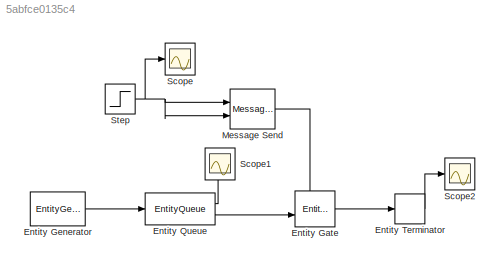
MODEL slx_5abfce0135c4
KIND model
CONFIG AbsTol = auto
CONFIG FixedStep = auto
CONFIG MaxStep = auto
CONFIG MinStep = auto
CONFIG RelTol = 1e-3
CONFIG SampleTimeConstraint = Unconstrained
CONFIG Solver = VariableStepDiscrete
CONFIG SolverMode = Auto
CONFIG SolverName = VariableStepDiscrete
CONFIG StartTime = 0.0
CONFIG StopTime = 10.0
BLOCK [EntityGate] Entity Gate
  InputPortMap = u0,u1
  InputPortMessageModes = m,m
  OutputPortMap = o0
  OutputPortMessageModes = m
  Ports = [2, 1]
BLOCK [EntityGenerator] Entity Generator
  EntityType = Structured
  EntityTypeName = Entity
  OutputPortMap = o3
  OutputPortMessageModes = m
  Ports = [0, 1]
BLOCK [EntityQueue] Entity Queue
  InputPortMap = u0
  InputPortMessageModes = m
  NumberEntitiesInBlock = on
  OutputPortMap = o1,o5
  OutputPortMessageModes = n,m
  Ports = [1, 2]
BLOCK [EntityTerminator] Entity Terminator
  InputPortMap = u0
  InputPortMessageModes = m
  NumberEntitiesArrived = on
  OutputPortMap = o0
  Ports = [1, 1]
BLOCK [MessageSend] Message Send
  InputPortMap = e0,u1
  OutputPortMessageModes = m
  Ports = [2, 1]
  ShowEnablePort = on
BLOCK [Scope] Scope
  Ports = [1]
  ScopeSpecificationString = Simulink.scopes.TimeScopeBlockCfg('CurrentConfiguration', extmgr.ConfigurationSet(extmgr.Configuration('Core','General UI',true),extmgr.Configuration('Core','Source UI',true),extmgr.Configuration('Sources','WiredSimulink',true),extmgr.Configuration('Visuals','Time Domain',true,'SerializedDisplays',{struct('MinYLimReal','-1.00000','MaxYLimReal','1.00000','YLabelReal','','MinYLimMag','0.00000','MaxY...<+1437ch>
BLOCK [Scope] Scope1
  Ports = [1]
  ScopeSpecificationString = Simulink.scopes.TimeScopeBlockCfg('CurrentConfiguration', extmgr.ConfigurationSet(extmgr.Configuration('Core','General UI',true),extmgr.Configuration('Core','Source UI',true),extmgr.Configuration('Sources','WiredSimulink',true,'DataLoggingVariableName','ScopeData1'),extmgr.Configuration('Visuals','Time Domain',true,'SerializedDisplays',{struct('MinYLimReal','-0.125','MaxYLimReal','1.125','YLabelRe...<+1477ch>
BLOCK [Scope] Scope2
  Ports = [1]
  ScopeSpecificationString = Simulink.scopes.TimeScopeBlockCfg('CurrentConfiguration', extmgr.ConfigurationSet(extmgr.Configuration('Core','General UI',true),extmgr.Configuration('Core','Source UI',true),extmgr.Configuration('Sources','WiredSimulink',true,'DataLoggingVariableName','ScopeData2'),extmgr.Configuration('Visuals','Time Domain',true,'SerializedDisplays',{struct('MinYLimReal','-0.25','MaxYLimReal','12.25','YLabelRea...<+1492ch>
BLOCK [Step] Step
  SampleTime = 0
  Time = 4
LINE Entity Gate:1 -> Entity Terminator:1
LINE Entity Generator:1 -> Entity Queue:1
LINE Entity Queue:1 -> Scope1:1
LINE Entity Queue:2 -> Entity Gate:2
LINE Entity Terminator:1 -> Scope2:1
LINE Message Send:1 -> Entity Gate:1
NET Step:1 -> Message Send:1, Message Send:2, Scope:1
note: NET lines group one-source signal fan-out (src -> all destinations, sorted); 1:1 wires keep LINE
